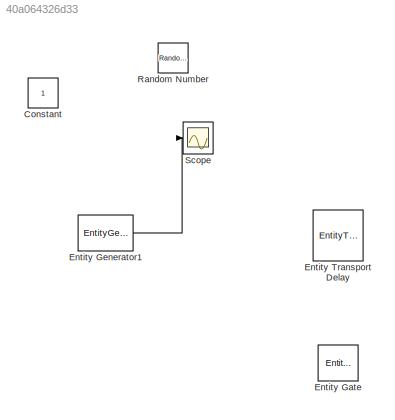
MODEL slx_40a064326d33
KIND model
CONFIG AbsTol = auto
CONFIG EnableMultiTasking = off
CONFIG FixedStep = auto
CONFIG MaxStep = auto
CONFIG MinStep = auto
CONFIG RelTol = 1e-3
CONFIG SampleTimeConstraint = Unconstrained
CONFIG SolverName = VariableStepAuto
CONFIG StartTime = 0.0
CONFIG StopTime = 10.0
BLOCK [Constant] Constant
BLOCK [EntityGate] Entity Gate
  InputPortMap = u0,u1
  InputPortMessageModes = m,m
  OutputPortMap = o0
  OutputPortMessageModes = m
BLOCK [EntityGenerator] Entity Generator1
  AttributeInitialValue = 20|0.9|2
  AttributeName = nQueries|ArrivalRate|TaskWeight
  EntityType = Structured
  EntityTypeName = Entity
  GenerateAction = % Параметры\nnQueries = 20;       % Количество запросов\nArrivalRate = 0.9;    % Ставка прибытия (время между запросами)\nTaskWeight = 2;       % Вес задачи (например, для задания времени обработки)\n\n% Инициализация\npersistent queryCount;  % Переменная для отслеживания количества запросов\nif isempty(queryCount)\n    queryCount = 0;  % Начальное значение счетчика запросов\nend\n\n% Проверка, нужно ли созд...<+508ch>
  InputPortMap = u1
  NumberEntitiesDeparted = on
  OutputPortMap = o0,o3
  OutputPortMessageModes = n,m
  TimeSource = Signal port
BLOCK [EntityTransportDelay] Entity Transport Delay
  InputPortMessageModes = m,n
  OutputPortMessageModes = m
BLOCK [RandomNumber] Random Number
  SampleTime = 0.1
BLOCK [Scope] Scope
  Floating = off
  NumInputPorts = 1
  ScopeSpecificationString = Simulink.scopes.TimeScopeBlockCfg('CurrentConfiguration', extmgr.ConfigurationSet(extmgr.Configuration('Core','General UI',true),extmgr.Configuration('Core','Source UI',true),extmgr.Configuration('Sources','WiredSimulink',true),extmgr.Configuration('Visuals','Time Domain',true,'SerializedDisplays',{struct('MinYLimReal','-0.25','MaxYLimReal','12.25','YLabelReal','','MinYLimMag','0.00000','MaxYLimMa...<+1443ch>
LINE Entity Generator1:1 -> Scope:1
